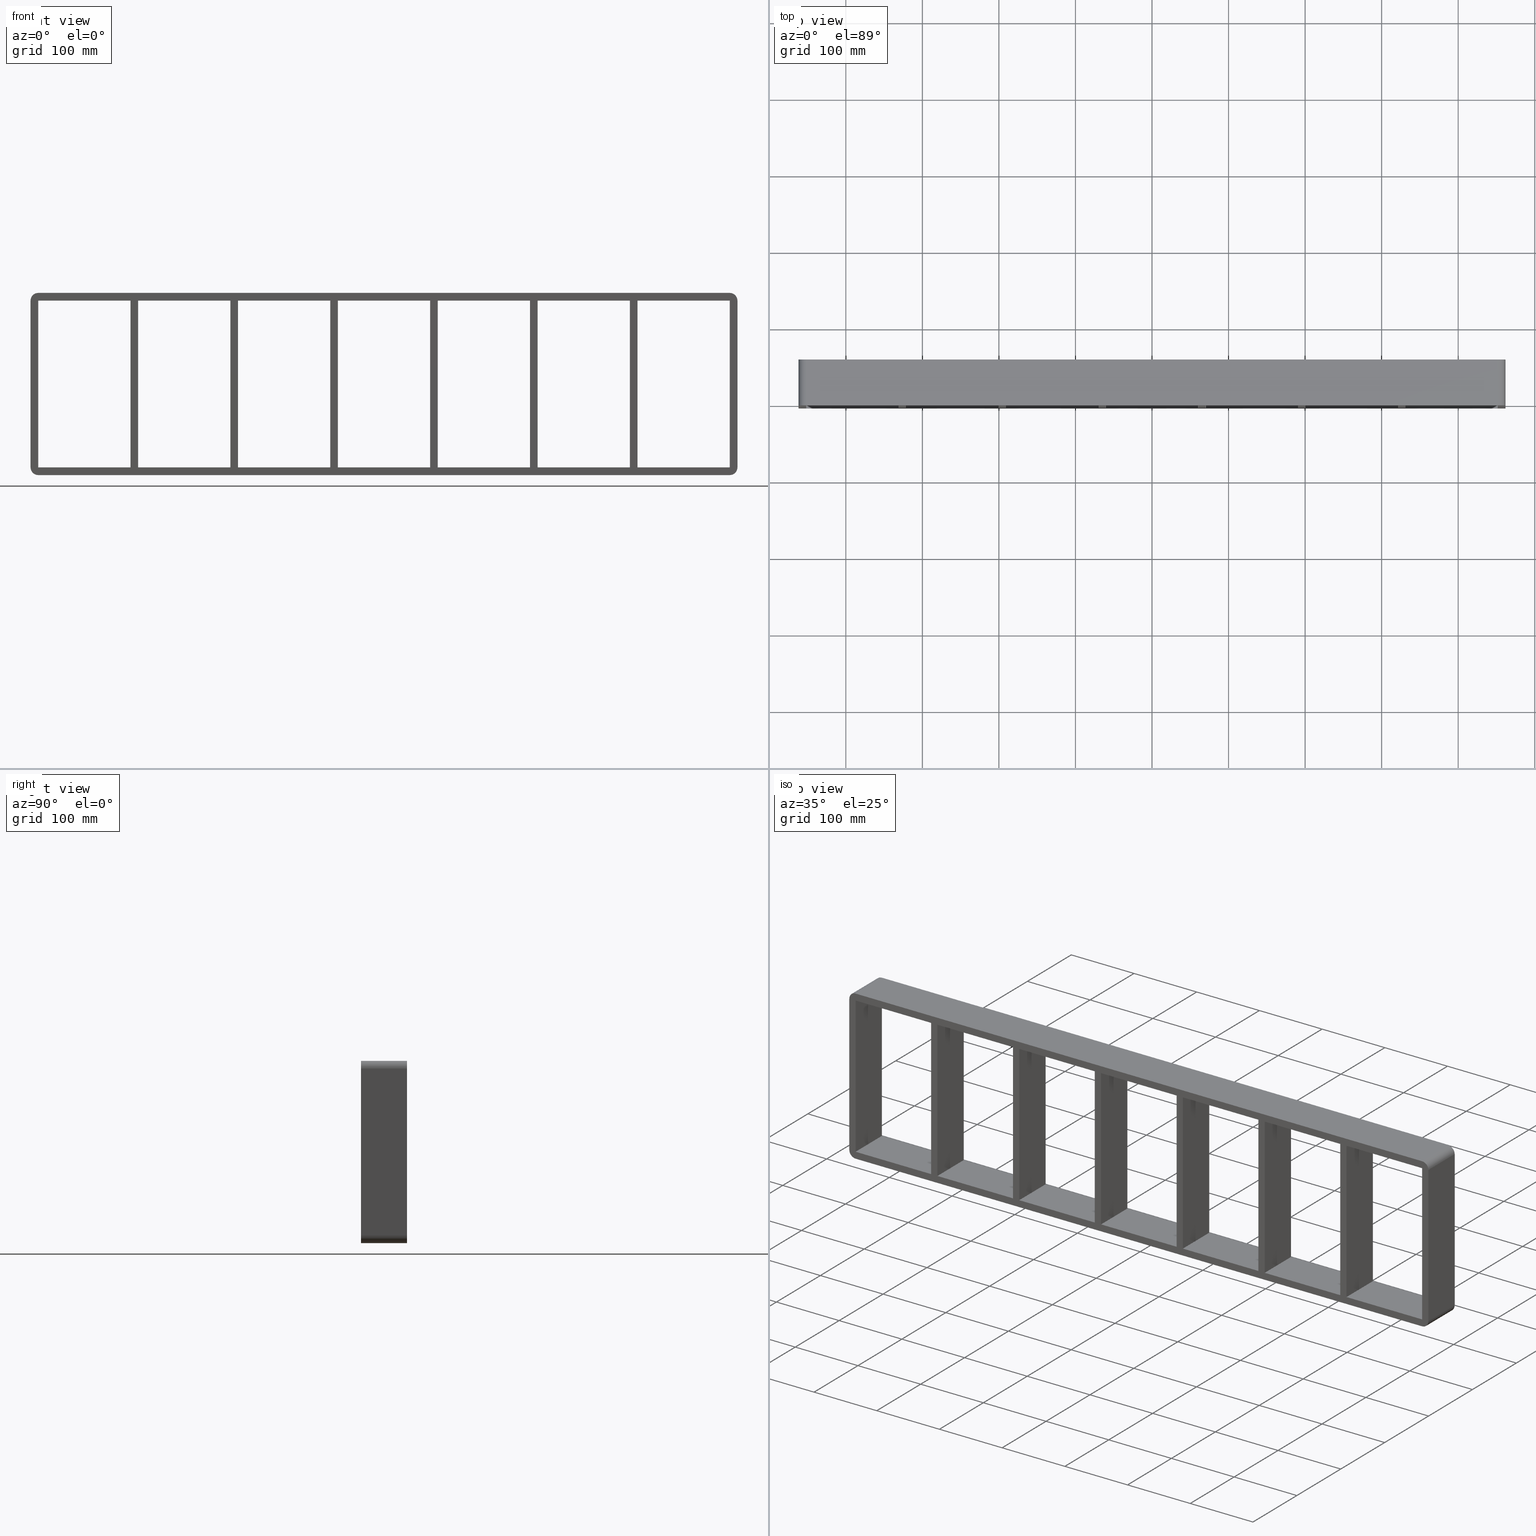
[diagram: canonical four-view strip — front | top / right | iso, engineering-drawing reading convention]
A machine part, canonical four-view strip (front | top / right | iso — engineering-drawing reading convention). The complete STEP part file that produces these views, byte-faithful:
ISO-10303-21;
HEADER;
/****************************************************************
 * Generated by software with PDElib inside                    *
 * PDElib Version v51a, created Wed 11/30/2011                  *
 * ITI Transcendata (http://www.transcendata.com/)              *
 ****************************************************************/
FILE_DESCRIPTION((''),'2;1');
FILE_NAME('C:\\RoxtecConfigurator\\CreatedFiles\\STEP\\S6X7.stp','2013-06-28T14:03:20',(''),(''),'Autodesk Inventor 2013','Autodesk Inventor 2013','');
FILE_SCHEMA(('AUTOMOTIVE_DESIGN { 1 0 10303 214 1 1 1 1 }'));
ENDSEC;
DATA;
#5=APPLICATION_CONTEXT('automotive design');
#6=APPLICATION_PROTOCOL_DEFINITION('International Standard','automotive_design',2001,#5);
#7=PRODUCT_CONTEXT('',#5,'mechanical');
#8=PRODUCT('roxtec S_SF_G','roxtec S_SF_G',$,(#7));
#9=PRODUCT_RELATED_PRODUCT_CATEGORY('part',$,(#8));
#10=PRODUCT_DEFINITION_FORMATION('',$,#8);
#11=PRODUCT_DEFINITION_CONTEXT('part definition',#5,'design');
#12=PRODUCT_DEFINITION('',$,#10,#11);
#18=(NAMED_UNIT(*)PLANE_ANGLE_UNIT()SI_UNIT($,.RADIAN.));
#19=DIMENSIONAL_EXPONENTS(0.0,0.0,0.0,0.0,0.0,0.0,0.0);
#20=PLANE_ANGLE_MEASURE_WITH_UNIT(PLANE_ANGLE_MEASURE(0.0174532925),#18);
#24=(CONVERSION_BASED_UNIT('DEGREE',#20)NAMED_UNIT(#19)PLANE_ANGLE_UNIT());
#28=(NAMED_UNIT(*)SI_UNIT($,.STERADIAN.)SOLID_ANGLE_UNIT());
#32=(LENGTH_UNIT()NAMED_UNIT(*)SI_UNIT(.MILLI.,.METRE.));
#34=UNCERTAINTY_MEASURE_WITH_UNIT(LENGTH_MEASURE(0.01),#32,'DISTANCE_ACCURACY_VALUE','');
#36=(GEOMETRIC_REPRESENTATION_CONTEXT(3)GLOBAL_UNCERTAINTY_ASSIGNED_CONTEXT((#34))GLOBAL_UNIT_ASSIGNED_CONTEXT((#24,#28,#32))REPRESENTATION_CONTEXT('None','None'));
#37=AXIS2_PLACEMENT_3D('',#38,#39,#40);
#38=CARTESIAN_POINT('',(0.0,0.0,0.0));
#39=DIRECTION('',(0.0,0.0,1.0));
#40=DIRECTION('',(1.0,0.0,0.0));
#41=SHAPE_REPRESENTATION('',(#37),#36);
#42=PRODUCT_DEFINITION_SHAPE('','',#12);
#43=SHAPE_DEFINITION_REPRESENTATION(#42,#41);
#49=(NAMED_UNIT(*)PLANE_ANGLE_UNIT()SI_UNIT($,.RADIAN.));
#50=DIMENSIONAL_EXPONENTS(0.0,0.0,0.0,0.0,0.0,0.0,0.0);
#51=PLANE_ANGLE_MEASURE_WITH_UNIT(PLANE_ANGLE_MEASURE(0.0174532925),#49);
#55=(CONVERSION_BASED_UNIT('DEGREE',#51)NAMED_UNIT(#50)PLANE_ANGLE_UNIT());
#59=(NAMED_UNIT(*)SI_UNIT($,.STERADIAN.)SOLID_ANGLE_UNIT());
#63=(LENGTH_UNIT()NAMED_UNIT(*)SI_UNIT(.MILLI.,.METRE.));
#65=UNCERTAINTY_MEASURE_WITH_UNIT(LENGTH_MEASURE(0.000001),#63,'DISTANCE_ACCURACY_VALUE','');
#67=(GEOMETRIC_REPRESENTATION_CONTEXT(3)GLOBAL_UNCERTAINTY_ASSIGNED_CONTEXT((#65))GLOBAL_UNIT_ASSIGNED_CONTEXT((#55,#59,#63))REPRESENTATION_CONTEXT('','3D'));
#68=CARTESIAN_POINT('',(321.24999999999875,-3.0,-109.0));
#69=DIRECTION('',(-1.0,0.0,0.0));
#70=DIRECTION('',(0.0,0.0,1.0));
#71=AXIS2_PLACEMENT_3D('',#68,#69,#70);
#72=PLANE('',#71);
#73=CARTESIAN_POINT('',(321.24999999999875,-3.0,-109.0));
#74=VERTEX_POINT('',#73);
#75=CARTESIAN_POINT('',(321.24999999999875,-3.0,108.99999999999997));
#76=VERTEX_POINT('',#75);
#77=CARTESIAN_POINT('',(321.24999999999875,-3.0,-109.0));
#78=DIRECTION('',(0.0,0.0,1.0));
#79=VECTOR('',#78,217.99999999999997);
#80=LINE('',#77,#79);
#81=EDGE_CURVE('',#74,#76,#80,.T.);
#82=ORIENTED_EDGE('',*,*,#81,.T.);
#83=CARTESIAN_POINT('',(321.24999999999875,57.0,108.99999999999997));
#84=VERTEX_POINT('',#83);
#85=CARTESIAN_POINT('',(321.24999999999875,57.000000000000007,108.99999999999999));
#86=DIRECTION('',(0.0,-1.0,0.0));
#87=VECTOR('',#86,60.000000000000007);
#88=LINE('',#85,#87);
#89=EDGE_CURVE('',#84,#76,#88,.T.);
#90=ORIENTED_EDGE('',*,*,#89,.F.);
#91=CARTESIAN_POINT('',(321.24999999999875,57.0,-109.0));
#92=VERTEX_POINT('',#91);
#93=CARTESIAN_POINT('',(321.24999999999875,57.0,-109.0));
#94=DIRECTION('',(0.0,0.0,1.0));
#95=VECTOR('',#94,217.99999999999997);
#96=LINE('',#93,#95);
#97=EDGE_CURVE('',#92,#84,#96,.T.);
#98=ORIENTED_EDGE('',*,*,#97,.F.);
#99=CARTESIAN_POINT('',(321.24999999999875,-3.0,-109.0));
#100=DIRECTION('',(0.0,1.0,0.0));
#101=VECTOR('',#100,60.000000000000007);
#102=LINE('',#99,#101);
#103=EDGE_CURVE('',#74,#92,#102,.T.);
#104=ORIENTED_EDGE('',*,*,#103,.F.);
#105=EDGE_LOOP('',(#82,#90,#98,#104));
#106=FACE_OUTER_BOUND('',#105,.T.);
#107=ADVANCED_FACE('',(#106),#72,.T.);
#108=CARTESIAN_POINT('',(331.25,-3.0,108.99999999999997));
#109=DIRECTION('',(1.0,0.0,0.0));
#110=DIRECTION('',(0.0,0.0,-1.0));
#111=AXIS2_PLACEMENT_3D('',#108,#109,#110);
#112=PLANE('',#111);
#113=CARTESIAN_POINT('',(331.25,-3.0,108.99999999999997));
#114=VERTEX_POINT('',#113);
#115=CARTESIAN_POINT('',(331.25,-3.0,-108.9999999999842));
#116=VERTEX_POINT('',#115);
#117=CARTESIAN_POINT('',(331.25,-3.0,108.99999999999997));
#118=DIRECTION('',(0.0,0.0,-1.0));
#119=VECTOR('',#118,217.99999999998417);
#120=LINE('',#117,#119);
#121=EDGE_CURVE('',#114,#116,#120,.T.);
#122=ORIENTED_EDGE('',*,*,#121,.T.);
#123=CARTESIAN_POINT('',(331.25,57.0,-108.9999999999842));
#124=VERTEX_POINT('',#123);
#125=CARTESIAN_POINT('',(331.25,57.000000000000007,-109.0));
#126=DIRECTION('',(0.0,-1.0,0.0));
#127=VECTOR('',#126,60.000000000000007);
#128=LINE('',#125,#127);
#129=EDGE_CURVE('',#124,#116,#128,.T.);
#130=ORIENTED_EDGE('',*,*,#129,.F.);
#131=CARTESIAN_POINT('',(331.25,57.0,108.99999999999997));
#132=VERTEX_POINT('',#131);
#133=CARTESIAN_POINT('',(331.25,57.0,108.99999999999997));
#134=DIRECTION('',(0.0,0.0,-1.0));
#135=VECTOR('',#134,217.99999999998417);
#136=LINE('',#133,#135);
#137=EDGE_CURVE('',#132,#124,#136,.T.);
#138=ORIENTED_EDGE('',*,*,#137,.F.);
#139=CARTESIAN_POINT('',(331.25,-3.0,108.99999999999999));
#140=DIRECTION('',(0.0,1.0,0.0));
#141=VECTOR('',#140,60.000000000000007);
#142=LINE('',#139,#141);
#143=EDGE_CURVE('',#114,#132,#142,.T.);
#144=ORIENTED_EDGE('',*,*,#143,.F.);
#145=EDGE_LOOP('',(#122,#130,#138,#144));
#146=FACE_OUTER_BOUND('',#145,.T.);
#147=ADVANCED_FACE('',(#146),#112,.T.);
#148=CARTESIAN_POINT('',(190.74999999999878,-3.0,-109.0));
#149=DIRECTION('',(-1.0,0.0,0.0));
#150=DIRECTION('',(0.0,0.0,1.0));
#151=AXIS2_PLACEMENT_3D('',#148,#149,#150);
#152=PLANE('',#151);
#153=CARTESIAN_POINT('',(190.74999999999878,-3.0,-109.0));
#154=VERTEX_POINT('',#153);
#155=CARTESIAN_POINT('',(190.74999999999872,-3.0,108.99999999999997));
#156=VERTEX_POINT('',#155);
#157=CARTESIAN_POINT('',(190.74999999999878,-3.0,-109.0));
#158=DIRECTION('',(0.0,0.0,1.0));
#159=VECTOR('',#158,217.99999999999997);
#160=LINE('',#157,#159);
#161=EDGE_CURVE('',#154,#156,#160,.T.);
#162=ORIENTED_EDGE('',*,*,#161,.T.);
#163=CARTESIAN_POINT('',(190.74999999999872,57.0,108.99999999999997));
#164=VERTEX_POINT('',#163);
#165=CARTESIAN_POINT('',(190.74999999999864,57.000000000000007,108.99999999999999));
#166=DIRECTION('',(0.0,-1.0,0.0));
#167=VECTOR('',#166,60.000000000000007);
#168=LINE('',#165,#167);
#169=EDGE_CURVE('',#164,#156,#168,.T.);
#170=ORIENTED_EDGE('',*,*,#169,.F.);
#171=CARTESIAN_POINT('',(190.74999999999878,57.0,-109.0));
#172=VERTEX_POINT('',#171);
#173=CARTESIAN_POINT('',(190.74999999999878,57.0,-109.0));
#174=DIRECTION('',(0.0,0.0,1.0));
#175=VECTOR('',#174,217.99999999999997);
#176=LINE('',#173,#175);
#177=EDGE_CURVE('',#172,#164,#176,.T.);
#178=ORIENTED_EDGE('',*,*,#177,.F.);
#179=CARTESIAN_POINT('',(190.74999999999875,-3.0,-109.0));
#180=DIRECTION('',(0.0,1.0,0.0));
#181=VECTOR('',#180,60.000000000000007);
#182=LINE('',#179,#181);
#183=EDGE_CURVE('',#154,#172,#182,.T.);
#184=ORIENTED_EDGE('',*,*,#183,.F.);
#185=EDGE_LOOP('',(#162,#170,#178,#184));
#186=FACE_OUTER_BOUND('',#185,.T.);
#187=ADVANCED_FACE('',(#186),#152,.T.);
#188=CARTESIAN_POINT('',(200.75000000000006,-3.0,108.99999999999997));
#189=DIRECTION('',(1.0,0.0,0.0));
#190=DIRECTION('',(0.0,0.0,-1.0));
#191=AXIS2_PLACEMENT_3D('',#188,#189,#190);
#192=PLANE('',#191);
#193=CARTESIAN_POINT('',(200.75000000000006,-3.0,108.99999999999997));
#194=VERTEX_POINT('',#193);
#195=CARTESIAN_POINT('',(200.75000000000006,-3.0,-108.9999999999842));
#196=VERTEX_POINT('',#195);
#197=CARTESIAN_POINT('',(200.75000000000006,-3.0,108.99999999999997));
#198=DIRECTION('',(0.0,0.0,-1.0));
#199=VECTOR('',#198,217.99999999998417);
#200=LINE('',#197,#199);
#201=EDGE_CURVE('',#194,#196,#200,.T.);
#202=ORIENTED_EDGE('',*,*,#201,.T.);
#203=CARTESIAN_POINT('',(200.75000000000006,57.0,-108.9999999999842));
#204=VERTEX_POINT('',#203);
#205=CARTESIAN_POINT('',(200.75000000000003,57.000000000000007,-109.0));
#206=DIRECTION('',(0.0,-1.0,0.0));
#207=VECTOR('',#206,60.000000000000007);
#208=LINE('',#205,#207);
#209=EDGE_CURVE('',#204,#196,#208,.T.);
#210=ORIENTED_EDGE('',*,*,#209,.F.);
#211=CARTESIAN_POINT('',(200.75000000000006,57.0,108.99999999999997));
#212=VERTEX_POINT('',#211);
#213=CARTESIAN_POINT('',(200.75000000000006,57.0,108.99999999999997));
#214=DIRECTION('',(0.0,0.0,-1.0));
#215=VECTOR('',#214,217.99999999998417);
#216=LINE('',#213,#215);
#217=EDGE_CURVE('',#212,#204,#216,.T.);
#218=ORIENTED_EDGE('',*,*,#217,.F.);
#219=CARTESIAN_POINT('',(200.75000000000003,-3.0,108.99999999999999));
#220=DIRECTION('',(0.0,1.0,0.0));
#221=VECTOR('',#220,60.000000000000007);
#222=LINE('',#219,#221);
#223=EDGE_CURVE('',#194,#212,#222,.T.);
#224=ORIENTED_EDGE('',*,*,#223,.F.);
#225=EDGE_LOOP('',(#202,#210,#218,#224));
#226=FACE_OUTER_BOUND('',#225,.T.);
#227=ADVANCED_FACE('',(#226),#192,.T.);
#228=CARTESIAN_POINT('',(60.249999999998778,-3.0,-109.0));
#229=DIRECTION('',(-1.0,0.0,0.0));
#230=DIRECTION('',(0.0,0.0,1.0));
#231=AXIS2_PLACEMENT_3D('',#228,#229,#230);
#232=PLANE('',#231);
#233=CARTESIAN_POINT('',(60.249999999998778,-3.0,-109.0));
#234=VERTEX_POINT('',#233);
#235=CARTESIAN_POINT('',(60.249999999998707,-3.0,108.99999999999997));
#236=VERTEX_POINT('',#235);
#237=CARTESIAN_POINT('',(60.249999999998778,-3.0,-109.0));
#238=DIRECTION('',(0.0,0.0,1.0));
#239=VECTOR('',#238,217.99999999999997);
#240=LINE('',#237,#239);
#241=EDGE_CURVE('',#234,#236,#240,.T.);
#242=ORIENTED_EDGE('',*,*,#241,.T.);
#243=CARTESIAN_POINT('',(60.249999999998707,57.0,108.99999999999997));
#244=VERTEX_POINT('',#243);
#245=CARTESIAN_POINT('',(60.249999999998707,57.000000000000007,108.99999999999999));
#246=DIRECTION('',(0.0,-1.0,0.0));
#247=VECTOR('',#246,60.000000000000007);
#248=LINE('',#245,#247);
#249=EDGE_CURVE('',#244,#236,#248,.T.);
#250=ORIENTED_EDGE('',*,*,#249,.F.);
#251=CARTESIAN_POINT('',(60.249999999998778,57.0,-109.0));
#252=VERTEX_POINT('',#251);
#253=CARTESIAN_POINT('',(60.249999999998778,57.0,-109.0));
#254=DIRECTION('',(0.0,0.0,1.0));
#255=VECTOR('',#254,217.99999999999997);
#256=LINE('',#253,#255);
#257=EDGE_CURVE('',#252,#244,#256,.T.);
#258=ORIENTED_EDGE('',*,*,#257,.F.);
#259=CARTESIAN_POINT('',(60.249999999998778,-3.0,-109.0));
#260=DIRECTION('',(0.0,1.0,0.0));
#261=VECTOR('',#260,60.000000000000007);
#262=LINE('',#259,#261);
#263=EDGE_CURVE('',#234,#252,#262,.T.);
#264=ORIENTED_EDGE('',*,*,#263,.F.);
#265=EDGE_LOOP('',(#242,#250,#258,#264));
#266=FACE_OUTER_BOUND('',#265,.T.);
#267=ADVANCED_FACE('',(#266),#232,.T.);
#268=CARTESIAN_POINT('',(70.250000000000057,-3.0,108.99999999999997));
#269=DIRECTION('',(1.0,0.0,0.0));
#270=DIRECTION('',(0.0,0.0,-1.0));
#271=AXIS2_PLACEMENT_3D('',#268,#269,#270);
#272=PLANE('',#271);
#273=CARTESIAN_POINT('',(70.250000000000057,-3.0,108.99999999999997));
#274=VERTEX_POINT('',#273);
#275=CARTESIAN_POINT('',(70.250000000000057,-3.0,-108.9999999999842));
#276=VERTEX_POINT('',#275);
#277=CARTESIAN_POINT('',(70.250000000000057,-3.0,108.99999999999997));
#278=DIRECTION('',(0.0,0.0,-1.0));
#279=VECTOR('',#278,217.99999999998417);
#280=LINE('',#277,#279);
#281=EDGE_CURVE('',#274,#276,#280,.T.);
#282=ORIENTED_EDGE('',*,*,#281,.T.);
#283=CARTESIAN_POINT('',(70.250000000000057,57.0,-108.9999999999842));
#284=VERTEX_POINT('',#283);
#285=CARTESIAN_POINT('',(70.250000000000057,57.000000000000007,-109.0));
#286=DIRECTION('',(0.0,-1.0,0.0));
#287=VECTOR('',#286,60.000000000000007);
#288=LINE('',#285,#287);
#289=EDGE_CURVE('',#284,#276,#288,.T.);
#290=ORIENTED_EDGE('',*,*,#289,.F.);
#291=CARTESIAN_POINT('',(70.250000000000057,57.0,108.99999999999997));
#292=VERTEX_POINT('',#291);
#293=CARTESIAN_POINT('',(70.250000000000057,57.0,108.99999999999997));
#294=DIRECTION('',(0.0,0.0,-1.0));
#295=VECTOR('',#294,217.99999999998417);
#296=LINE('',#293,#295);
#297=EDGE_CURVE('',#292,#284,#296,.T.);
#298=ORIENTED_EDGE('',*,*,#297,.F.);
#299=CARTESIAN_POINT('',(70.250000000000057,-3.0,108.99999999999999));
#300=DIRECTION('',(0.0,1.0,0.0));
#301=VECTOR('',#300,60.000000000000007);
#302=LINE('',#299,#301);
#303=EDGE_CURVE('',#274,#292,#302,.T.);
#304=ORIENTED_EDGE('',*,*,#303,.F.);
#305=EDGE_LOOP('',(#282,#290,#298,#304));
#306=FACE_OUTER_BOUND('',#305,.T.);
#307=ADVANCED_FACE('',(#306),#272,.T.);
#308=CARTESIAN_POINT('',(-70.250000000001265,-3.0,-109.0));
#309=DIRECTION('',(-1.0,0.0,0.0));
#310=DIRECTION('',(0.0,0.0,1.0));
#311=AXIS2_PLACEMENT_3D('',#308,#309,#310);
#312=PLANE('',#311);
#313=CARTESIAN_POINT('',(-70.250000000001265,-3.0,-109.0));
#314=VERTEX_POINT('',#313);
#315=CARTESIAN_POINT('',(-70.250000000001336,-3.0,108.99999999999997));
#316=VERTEX_POINT('',#315);
#317=CARTESIAN_POINT('',(-70.250000000001265,-3.0,-109.0));
#318=DIRECTION('',(0.0,0.0,1.0));
#319=VECTOR('',#318,217.99999999999997);
#320=LINE('',#317,#319);
#321=EDGE_CURVE('',#314,#316,#320,.T.);
#322=ORIENTED_EDGE('',*,*,#321,.T.);
#323=CARTESIAN_POINT('',(-70.250000000001336,57.0,108.99999999999997));
#324=VERTEX_POINT('',#323);
#325=CARTESIAN_POINT('',(-70.250000000001336,57.000000000000007,108.99999999999999));
#326=DIRECTION('',(0.0,-1.0,0.0));
#327=VECTOR('',#326,60.000000000000007);
#328=LINE('',#325,#327);
#329=EDGE_CURVE('',#324,#316,#328,.T.);
#330=ORIENTED_EDGE('',*,*,#329,.F.);
#331=CARTESIAN_POINT('',(-70.250000000001265,57.0,-109.0));
#332=VERTEX_POINT('',#331);
#333=CARTESIAN_POINT('',(-70.250000000001265,57.0,-109.0));
#334=DIRECTION('',(0.0,0.0,1.0));
#335=VECTOR('',#334,217.99999999999997);
#336=LINE('',#333,#335);
#337=EDGE_CURVE('',#332,#324,#336,.T.);
#338=ORIENTED_EDGE('',*,*,#337,.F.);
#339=CARTESIAN_POINT('',(-70.250000000001265,-3.0,-109.0));
#340=DIRECTION('',(0.0,1.0,0.0));
#341=VECTOR('',#340,60.000000000000007);
#342=LINE('',#339,#341);
#343=EDGE_CURVE('',#314,#332,#342,.T.);
#344=ORIENTED_EDGE('',*,*,#343,.F.);
#345=EDGE_LOOP('',(#322,#330,#338,#344));
#346=FACE_OUTER_BOUND('',#345,.T.);
#347=ADVANCED_FACE('',(#346),#312,.T.);
#348=CARTESIAN_POINT('',(-60.249999999999986,-3.0,108.99999999999997));
#349=DIRECTION('',(1.0,0.0,0.0));
#350=DIRECTION('',(0.0,0.0,-1.0));
#351=AXIS2_PLACEMENT_3D('',#348,#349,#350);
#352=PLANE('',#351);
#353=CARTESIAN_POINT('',(-60.249999999999986,-3.0,108.99999999999997));
#354=VERTEX_POINT('',#353);
#355=CARTESIAN_POINT('',(-60.249999999999986,-3.0,-108.9999999999842));
#356=VERTEX_POINT('',#355);
#357=CARTESIAN_POINT('',(-60.249999999999986,-3.0,108.99999999999997));
#358=DIRECTION('',(0.0,0.0,-1.0));
#359=VECTOR('',#358,217.99999999998417);
#360=LINE('',#357,#359);
#361=EDGE_CURVE('',#354,#356,#360,.T.);
#362=ORIENTED_EDGE('',*,*,#361,.T.);
#363=CARTESIAN_POINT('',(-60.249999999999986,57.0,-108.9999999999842));
#364=VERTEX_POINT('',#363);
#365=CARTESIAN_POINT('',(-60.249999999999986,57.000000000000007,-109.0));
#366=DIRECTION('',(0.0,-1.0,0.0));
#367=VECTOR('',#366,60.000000000000007);
#368=LINE('',#365,#367);
#369=EDGE_CURVE('',#364,#356,#368,.T.);
#370=ORIENTED_EDGE('',*,*,#369,.F.);
#371=CARTESIAN_POINT('',(-60.249999999999986,57.0,108.99999999999997));
#372=VERTEX_POINT('',#371);
#373=CARTESIAN_POINT('',(-60.249999999999986,57.0,108.99999999999997));
#374=DIRECTION('',(0.0,0.0,-1.0));
#375=VECTOR('',#374,217.99999999998417);
#376=LINE('',#373,#375);
#377=EDGE_CURVE('',#372,#364,#376,.T.);
#378=ORIENTED_EDGE('',*,*,#377,.F.);
#379=CARTESIAN_POINT('',(-60.249999999999986,-3.0,108.99999999999999));
#380=DIRECTION('',(0.0,1.0,0.0));
#381=VECTOR('',#380,60.000000000000007);
#382=LINE('',#379,#381);
#383=EDGE_CURVE('',#354,#372,#382,.T.);
#384=ORIENTED_EDGE('',*,*,#383,.F.);
#385=EDGE_LOOP('',(#362,#370,#378,#384));
#386=FACE_OUTER_BOUND('',#385,.T.);
#387=ADVANCED_FACE('',(#386),#352,.T.);
#388=CARTESIAN_POINT('',(-200.75000000000128,-3.0,-109.0));
#389=DIRECTION('',(-1.0,0.0,0.0));
#390=DIRECTION('',(0.0,0.0,1.0));
#391=AXIS2_PLACEMENT_3D('',#388,#389,#390);
#392=PLANE('',#391);
#393=CARTESIAN_POINT('',(-200.75000000000128,-3.0,-109.0));
#394=VERTEX_POINT('',#393);
#395=CARTESIAN_POINT('',(-200.75000000000134,-3.0,108.99999999999997));
#396=VERTEX_POINT('',#395);
#397=CARTESIAN_POINT('',(-200.75000000000128,-3.0,-109.0));
#398=DIRECTION('',(0.0,0.0,1.0));
#399=VECTOR('',#398,217.99999999999997);
#400=LINE('',#397,#399);
#401=EDGE_CURVE('',#394,#396,#400,.T.);
#402=ORIENTED_EDGE('',*,*,#401,.T.);
#403=CARTESIAN_POINT('',(-200.75000000000134,57.0,108.99999999999997));
#404=VERTEX_POINT('',#403);
#405=CARTESIAN_POINT('',(-200.75000000000134,57.000000000000007,108.99999999999999));
#406=DIRECTION('',(0.0,-1.0,0.0));
#407=VECTOR('',#406,60.000000000000007);
#408=LINE('',#405,#407);
#409=EDGE_CURVE('',#404,#396,#408,.T.);
#410=ORIENTED_EDGE('',*,*,#409,.F.);
#411=CARTESIAN_POINT('',(-200.75000000000128,57.0,-109.0));
#412=VERTEX_POINT('',#411);
#413=CARTESIAN_POINT('',(-200.75000000000128,57.0,-109.0));
#414=DIRECTION('',(0.0,0.0,1.0));
#415=VECTOR('',#414,217.99999999999997);
#416=LINE('',#413,#415);
#417=EDGE_CURVE('',#412,#404,#416,.T.);
#418=ORIENTED_EDGE('',*,*,#417,.F.);
#419=CARTESIAN_POINT('',(-200.75000000000131,-3.0,-109.0));
#420=DIRECTION('',(0.0,1.0,0.0));
#421=VECTOR('',#420,60.000000000000007);
#422=LINE('',#419,#421);
#423=EDGE_CURVE('',#394,#412,#422,.T.);
#424=ORIENTED_EDGE('',*,*,#423,.F.);
#425=EDGE_LOOP('',(#402,#410,#418,#424));
#426=FACE_OUTER_BOUND('',#425,.T.);
#427=ADVANCED_FACE('',(#426),#392,.T.);
#428=CARTESIAN_POINT('',(-190.75,-3.0,108.99999999999997));
#429=DIRECTION('',(1.0,0.0,0.0));
#430=DIRECTION('',(0.0,0.0,-1.0));
#431=AXIS2_PLACEMENT_3D('',#428,#429,#430);
#432=PLANE('',#431);
#433=CARTESIAN_POINT('',(-190.75,-3.0,108.99999999999997));
#434=VERTEX_POINT('',#433);
#435=CARTESIAN_POINT('',(-190.75,-3.0,-108.9999999999842));
#436=VERTEX_POINT('',#435);
#437=CARTESIAN_POINT('',(-190.75,-3.0,108.99999999999997));
#438=DIRECTION('',(0.0,0.0,-1.0));
#439=VECTOR('',#438,217.99999999998417);
#440=LINE('',#437,#439);
#441=EDGE_CURVE('',#434,#436,#440,.T.);
#442=ORIENTED_EDGE('',*,*,#441,.T.);
#443=CARTESIAN_POINT('',(-190.75,57.0,-108.9999999999842));
#444=VERTEX_POINT('',#443);
#445=CARTESIAN_POINT('',(-190.75000000000003,57.000000000000007,-109.0));
#446=DIRECTION('',(0.0,-1.0,0.0));
#447=VECTOR('',#446,60.000000000000007);
#448=LINE('',#445,#447);
#449=EDGE_CURVE('',#444,#436,#448,.T.);
#450=ORIENTED_EDGE('',*,*,#449,.F.);
#451=CARTESIAN_POINT('',(-190.75,57.0,108.99999999999997));
#452=VERTEX_POINT('',#451);
#453=CARTESIAN_POINT('',(-190.75,57.0,108.99999999999997));
#454=DIRECTION('',(0.0,0.0,-1.0));
#455=VECTOR('',#454,217.99999999998417);
#456=LINE('',#453,#455);
#457=EDGE_CURVE('',#452,#444,#456,.T.);
#458=ORIENTED_EDGE('',*,*,#457,.F.);
#459=CARTESIAN_POINT('',(-190.75000000000003,-3.0,108.99999999999999));
#460=DIRECTION('',(0.0,1.0,0.0));
#461=VECTOR('',#460,60.000000000000007);
#462=LINE('',#459,#461);
#463=EDGE_CURVE('',#434,#452,#462,.T.);
#464=ORIENTED_EDGE('',*,*,#463,.F.);
#465=EDGE_LOOP('',(#442,#450,#458,#464));
#466=FACE_OUTER_BOUND('',#465,.T.);
#467=ADVANCED_FACE('',(#466),#432,.T.);
#468=CARTESIAN_POINT('',(451.75,0.0,-109.0));
#469=DIRECTION('',(0.0,0.0,-1.0));
#470=DIRECTION('',(-1.0,0.0,0.0));
#471=AXIS2_PLACEMENT_3D('',#468,#469,#470);
#472=PLANE('',#471);
#473=ORIENTED_EDGE('',*,*,#423,.T.);
#474=CARTESIAN_POINT('',(-321.25,57.0,-108.9999999999842));
#475=VERTEX_POINT('',#474);
#476=CARTESIAN_POINT('',(-321.25,57.0,-109.0));
#477=DIRECTION('',(1.0,0.0,0.0));
#478=VECTOR('',#477,120.49999999999872);
#479=LINE('',#476,#478);
#480=EDGE_CURVE('',#475,#412,#479,.T.);
#481=ORIENTED_EDGE('',*,*,#480,.F.);
#482=CARTESIAN_POINT('',(-321.25,-3.0,-108.9999999999842));
#483=VERTEX_POINT('',#482);
#484=CARTESIAN_POINT('',(-321.25,57.000000000000007,-109.0));
#485=DIRECTION('',(0.0,-1.0,0.0));
#486=VECTOR('',#485,60.000000000000007);
#487=LINE('',#484,#486);
#488=EDGE_CURVE('',#475,#483,#487,.T.);
#489=ORIENTED_EDGE('',*,*,#488,.T.);
#490=CARTESIAN_POINT('',(-200.75000000000128,-3.0,-109.0));
#491=DIRECTION('',(-1.0,0.0,0.0));
#492=VECTOR('',#491,120.49999999999872);
#493=LINE('',#490,#492);
#494=EDGE_CURVE('',#394,#483,#493,.T.);
#495=ORIENTED_EDGE('',*,*,#494,.F.);
#496=EDGE_LOOP('',(#473,#481,#489,#495));
#497=FACE_OUTER_BOUND('',#496,.T.);
#498=ADVANCED_FACE('',(#497),#472,.F.);
#499=CARTESIAN_POINT('',(451.75,0.0,-109.0));
#500=DIRECTION('',(0.0,0.0,-1.0));
#501=DIRECTION('',(-1.0,0.0,0.0));
#502=AXIS2_PLACEMENT_3D('',#499,#500,#501);
#503=PLANE('',#502);
#504=ORIENTED_EDGE('',*,*,#343,.T.);
#505=CARTESIAN_POINT('',(-190.74999999999997,57.0,-109.0));
#506=DIRECTION('',(1.0,0.0,0.0));
#507=VECTOR('',#506,120.49999999999869);
#508=LINE('',#505,#507);
#509=EDGE_CURVE('',#444,#332,#508,.T.);
#510=ORIENTED_EDGE('',*,*,#509,.F.);
#511=ORIENTED_EDGE('',*,*,#449,.T.);
#512=CARTESIAN_POINT('',(-70.250000000001279,-3.0,-109.0));
#513=DIRECTION('',(-1.0,0.0,0.0));
#514=VECTOR('',#513,120.49999999999869);
#515=LINE('',#512,#514);
#516=EDGE_CURVE('',#314,#436,#515,.T.);
#517=ORIENTED_EDGE('',*,*,#516,.F.);
#518=EDGE_LOOP('',(#504,#510,#511,#517));
#519=FACE_OUTER_BOUND('',#518,.T.);
#520=ADVANCED_FACE('',(#519),#503,.F.);
#521=CARTESIAN_POINT('',(451.75,0.0,-109.0));
#522=DIRECTION('',(0.0,0.0,-1.0));
#523=DIRECTION('',(-1.0,0.0,0.0));
#524=AXIS2_PLACEMENT_3D('',#521,#522,#523);
#525=PLANE('',#524);
#526=ORIENTED_EDGE('',*,*,#263,.T.);
#527=CARTESIAN_POINT('',(-60.249999999999972,57.0,-109.0));
#528=DIRECTION('',(1.0,0.0,0.0));
#529=VECTOR('',#528,120.49999999999875);
#530=LINE('',#527,#529);
#531=EDGE_CURVE('',#364,#252,#530,.T.);
#532=ORIENTED_EDGE('',*,*,#531,.F.);
#533=ORIENTED_EDGE('',*,*,#369,.T.);
#534=CARTESIAN_POINT('',(60.249999999998778,-3.0,-109.0));
#535=DIRECTION('',(-1.0,0.0,0.0));
#536=VECTOR('',#535,120.49999999999875);
#537=LINE('',#534,#536);
#538=EDGE_CURVE('',#234,#356,#537,.T.);
#539=ORIENTED_EDGE('',*,*,#538,.F.);
#540=EDGE_LOOP('',(#526,#532,#533,#539));
#541=FACE_OUTER_BOUND('',#540,.T.);
#542=ADVANCED_FACE('',(#541),#525,.F.);
#543=CARTESIAN_POINT('',(451.75,0.0,-109.0));
#544=DIRECTION('',(0.0,0.0,-1.0));
#545=DIRECTION('',(-1.0,0.0,0.0));
#546=AXIS2_PLACEMENT_3D('',#543,#544,#545);
#547=PLANE('',#546);
#548=ORIENTED_EDGE('',*,*,#183,.T.);
#549=CARTESIAN_POINT('',(70.250000000000057,57.0,-109.0));
#550=DIRECTION('',(1.0,0.0,0.0));
#551=VECTOR('',#550,120.49999999999875);
#552=LINE('',#549,#551);
#553=EDGE_CURVE('',#284,#172,#552,.T.);
#554=ORIENTED_EDGE('',*,*,#553,.F.);
#555=ORIENTED_EDGE('',*,*,#289,.T.);
#556=CARTESIAN_POINT('',(190.74999999999881,-3.0,-109.0));
#557=DIRECTION('',(-1.0,0.0,0.0));
#558=VECTOR('',#557,120.49999999999875);
#559=LINE('',#556,#558);
#560=EDGE_CURVE('',#154,#276,#559,.T.);
#561=ORIENTED_EDGE('',*,*,#560,.F.);
#562=EDGE_LOOP('',(#548,#554,#555,#561));
#563=FACE_OUTER_BOUND('',#562,.T.);
#564=ADVANCED_FACE('',(#563),#547,.F.);
#565=CARTESIAN_POINT('',(451.75,0.0,-109.0));
#566=DIRECTION('',(0.0,0.0,-1.0));
#567=DIRECTION('',(-1.0,0.0,0.0));
#568=AXIS2_PLACEMENT_3D('',#565,#566,#567);
#569=PLANE('',#568);
#570=ORIENTED_EDGE('',*,*,#103,.T.);
#571=CARTESIAN_POINT('',(200.75000000000006,57.0,-109.0));
#572=DIRECTION('',(1.0,0.0,0.0));
#573=VECTOR('',#572,120.49999999999869);
#574=LINE('',#571,#573);
#575=EDGE_CURVE('',#204,#92,#574,.T.);
#576=ORIENTED_EDGE('',*,*,#575,.F.);
#577=ORIENTED_EDGE('',*,*,#209,.T.);
#578=CARTESIAN_POINT('',(321.24999999999875,-3.0,-109.0));
#579=DIRECTION('',(-1.0,0.0,0.0));
#580=VECTOR('',#579,120.49999999999869);
#581=LINE('',#578,#580);
#582=EDGE_CURVE('',#74,#196,#581,.T.);
#583=ORIENTED_EDGE('',*,*,#582,.F.);
#584=EDGE_LOOP('',(#570,#576,#577,#583));
#585=FACE_OUTER_BOUND('',#584,.T.);
#586=ADVANCED_FACE('',(#585),#569,.F.);
#587=CARTESIAN_POINT('',(451.75,0.0,-109.0));
#588=DIRECTION('',(0.0,0.0,-1.0));
#589=DIRECTION('',(-1.0,0.0,0.0));
#590=AXIS2_PLACEMENT_3D('',#587,#588,#589);
#591=PLANE('',#590);
#592=ORIENTED_EDGE('',*,*,#129,.T.);
#593=CARTESIAN_POINT('',(451.75,-3.0,-109.0));
#594=VERTEX_POINT('',#593);
#595=CARTESIAN_POINT('',(451.75,-3.0,-109.0));
#596=DIRECTION('',(-1.0,0.0,0.0));
#597=VECTOR('',#596,120.5);
#598=LINE('',#595,#597);
#599=EDGE_CURVE('',#594,#116,#598,.T.);
#600=ORIENTED_EDGE('',*,*,#599,.F.);
#601=CARTESIAN_POINT('',(451.75,57.0,-109.0));
#602=VERTEX_POINT('',#601);
#603=CARTESIAN_POINT('',(451.75,57.0,-109.0));
#604=DIRECTION('',(0.0,-1.0,0.0));
#605=VECTOR('',#604,60.0);
#606=LINE('',#603,#605);
#607=EDGE_CURVE('',#602,#594,#606,.T.);
#608=ORIENTED_EDGE('',*,*,#607,.F.);
#609=CARTESIAN_POINT('',(331.25,57.0,-109.0));
#610=DIRECTION('',(1.0,0.0,0.0));
#611=VECTOR('',#610,120.5);
#612=LINE('',#609,#611);
#613=EDGE_CURVE('',#124,#602,#612,.T.);
#614=ORIENTED_EDGE('',*,*,#613,.F.);
#615=EDGE_LOOP('',(#592,#600,#608,#614));
#616=FACE_OUTER_BOUND('',#615,.T.);
#617=ADVANCED_FACE('',(#616),#591,.F.);
#618=CARTESIAN_POINT('',(-451.75,0.0,108.99999999999999));
#619=DIRECTION('',(0.0,0.0,1.0));
#620=DIRECTION('',(1.0,0.0,0.0));
#621=AXIS2_PLACEMENT_3D('',#618,#619,#620);
#622=PLANE('',#621);
#623=ORIENTED_EDGE('',*,*,#409,.T.);
#624=CARTESIAN_POINT('',(-321.25,-3.0,108.99999999999997));
#625=VERTEX_POINT('',#624);
#626=CARTESIAN_POINT('',(-321.25,-3.0,108.99999999999999));
#627=DIRECTION('',(1.0,0.0,0.0));
#628=VECTOR('',#627,120.49999999999866);
#629=LINE('',#626,#628);
#630=EDGE_CURVE('',#625,#396,#629,.T.);
#631=ORIENTED_EDGE('',*,*,#630,.F.);
#632=CARTESIAN_POINT('',(-321.25,57.0,108.99999999999997));
#633=VERTEX_POINT('',#632);
#634=CARTESIAN_POINT('',(-321.25,-3.0,108.99999999999999));
#635=DIRECTION('',(0.0,1.0,0.0));
#636=VECTOR('',#635,60.000000000000007);
#637=LINE('',#634,#636);
#638=EDGE_CURVE('',#625,#633,#637,.T.);
#639=ORIENTED_EDGE('',*,*,#638,.T.);
#640=CARTESIAN_POINT('',(-200.75000000000134,57.0,108.99999999999999));
#641=DIRECTION('',(-1.0,0.0,0.0));
#642=VECTOR('',#641,120.49999999999866);
#643=LINE('',#640,#642);
#644=EDGE_CURVE('',#404,#633,#643,.T.);
#645=ORIENTED_EDGE('',*,*,#644,.F.);
#646=EDGE_LOOP('',(#623,#631,#639,#645));
#647=FACE_OUTER_BOUND('',#646,.T.);
#648=ADVANCED_FACE('',(#647),#622,.F.);
#649=CARTESIAN_POINT('',(-451.75,0.0,108.99999999999999));
#650=DIRECTION('',(0.0,0.0,1.0));
#651=DIRECTION('',(1.0,0.0,0.0));
#652=AXIS2_PLACEMENT_3D('',#649,#650,#651);
#653=PLANE('',#652);
#654=ORIENTED_EDGE('',*,*,#329,.T.);
#655=CARTESIAN_POINT('',(-190.75,-3.0,108.99999999999999));
#656=DIRECTION('',(1.0,0.0,0.0));
#657=VECTOR('',#656,120.49999999999866);
#658=LINE('',#655,#657);
#659=EDGE_CURVE('',#434,#316,#658,.T.);
#660=ORIENTED_EDGE('',*,*,#659,.F.);
#661=ORIENTED_EDGE('',*,*,#463,.T.);
#662=CARTESIAN_POINT('',(-70.250000000001336,57.0,108.99999999999999));
#663=DIRECTION('',(-1.0,0.0,0.0));
#664=VECTOR('',#663,120.49999999999866);
#665=LINE('',#662,#664);
#666=EDGE_CURVE('',#324,#452,#665,.T.);
#667=ORIENTED_EDGE('',*,*,#666,.F.);
#668=EDGE_LOOP('',(#654,#660,#661,#667));
#669=FACE_OUTER_BOUND('',#668,.T.);
#670=ADVANCED_FACE('',(#669),#653,.F.);
#671=CARTESIAN_POINT('',(-451.75,0.0,108.99999999999999));
#672=DIRECTION('',(0.0,0.0,1.0));
#673=DIRECTION('',(1.0,0.0,0.0));
#674=AXIS2_PLACEMENT_3D('',#671,#672,#673);
#675=PLANE('',#674);
#676=ORIENTED_EDGE('',*,*,#249,.T.);
#677=CARTESIAN_POINT('',(-60.249999999999972,-3.0,108.99999999999999));
#678=DIRECTION('',(1.0,0.0,0.0));
#679=VECTOR('',#678,120.49999999999866);
#680=LINE('',#677,#679);
#681=EDGE_CURVE('',#354,#236,#680,.T.);
#682=ORIENTED_EDGE('',*,*,#681,.F.);
#683=ORIENTED_EDGE('',*,*,#383,.T.);
#684=CARTESIAN_POINT('',(60.249999999998693,57.0,108.99999999999999));
#685=DIRECTION('',(-1.0,0.0,0.0));
#686=VECTOR('',#685,120.49999999999866);
#687=LINE('',#684,#686);
#688=EDGE_CURVE('',#244,#372,#687,.T.);
#689=ORIENTED_EDGE('',*,*,#688,.F.);
#690=EDGE_LOOP('',(#676,#682,#683,#689));
#691=FACE_OUTER_BOUND('',#690,.T.);
#692=ADVANCED_FACE('',(#691),#675,.F.);
#693=CARTESIAN_POINT('',(-451.75,0.0,108.99999999999999));
#694=DIRECTION('',(0.0,0.0,1.0));
#695=DIRECTION('',(1.0,0.0,0.0));
#696=AXIS2_PLACEMENT_3D('',#693,#694,#695);
#697=PLANE('',#696);
#698=ORIENTED_EDGE('',*,*,#169,.T.);
#699=CARTESIAN_POINT('',(70.250000000000057,-3.0,108.99999999999999));
#700=DIRECTION('',(1.0,0.0,0.0));
#701=VECTOR('',#700,120.49999999999864);
#702=LINE('',#699,#701);
#703=EDGE_CURVE('',#274,#156,#702,.T.);
#704=ORIENTED_EDGE('',*,*,#703,.F.);
#705=ORIENTED_EDGE('',*,*,#303,.T.);
#706=CARTESIAN_POINT('',(190.74999999999869,57.0,108.99999999999999));
#707=DIRECTION('',(-1.0,0.0,0.0));
#708=VECTOR('',#707,120.49999999999864);
#709=LINE('',#706,#708);
#710=EDGE_CURVE('',#164,#292,#709,.T.);
#711=ORIENTED_EDGE('',*,*,#710,.F.);
#712=EDGE_LOOP('',(#698,#704,#705,#711));
#713=FACE_OUTER_BOUND('',#712,.T.);
#714=ADVANCED_FACE('',(#713),#697,.F.);
#715=CARTESIAN_POINT('',(-451.75,0.0,108.99999999999999));
#716=DIRECTION('',(0.0,0.0,1.0));
#717=DIRECTION('',(1.0,0.0,0.0));
#718=AXIS2_PLACEMENT_3D('',#715,#716,#717);
#719=PLANE('',#718);
#720=ORIENTED_EDGE('',*,*,#143,.T.);
#721=CARTESIAN_POINT('',(451.75,57.0,108.99999999999997));
#722=VERTEX_POINT('',#721);
#723=CARTESIAN_POINT('',(451.74999999999994,57.0,108.99999999999999));
#724=DIRECTION('',(-1.0,0.0,0.0));
#725=VECTOR('',#724,120.5);
#726=LINE('',#723,#725);
#727=EDGE_CURVE('',#722,#132,#726,.T.);
#728=ORIENTED_EDGE('',*,*,#727,.F.);
#729=CARTESIAN_POINT('',(451.75,-3.0,108.99999999999997));
#730=VERTEX_POINT('',#729);
#731=CARTESIAN_POINT('',(451.75,-3.0,108.99999999999999));
#732=DIRECTION('',(0.0,1.0,0.0));
#733=VECTOR('',#732,60.0);
#734=LINE('',#731,#733);
#735=EDGE_CURVE('',#730,#722,#734,.T.);
#736=ORIENTED_EDGE('',*,*,#735,.F.);
#737=CARTESIAN_POINT('',(331.24999999999994,-3.0,108.99999999999999));
#738=DIRECTION('',(1.0,0.0,0.0));
#739=VECTOR('',#738,120.5);
#740=LINE('',#737,#739);
#741=EDGE_CURVE('',#114,#730,#740,.T.);
#742=ORIENTED_EDGE('',*,*,#741,.F.);
#743=EDGE_LOOP('',(#720,#728,#736,#742));
#744=FACE_OUTER_BOUND('',#743,.T.);
#745=ADVANCED_FACE('',(#744),#719,.F.);
#746=CARTESIAN_POINT('',(-451.75,0.0,108.99999999999999));
#747=DIRECTION('',(0.0,0.0,1.0));
#748=DIRECTION('',(1.0,0.0,0.0));
#749=AXIS2_PLACEMENT_3D('',#746,#747,#748);
#750=PLANE('',#749);
#751=ORIENTED_EDGE('',*,*,#89,.T.);
#752=CARTESIAN_POINT('',(200.75000000000006,-3.0,108.99999999999999));
#753=DIRECTION('',(1.0,0.0,0.0));
#754=VECTOR('',#753,120.49999999999864);
#755=LINE('',#752,#754);
#756=EDGE_CURVE('',#194,#76,#755,.T.);
#757=ORIENTED_EDGE('',*,*,#756,.F.);
#758=ORIENTED_EDGE('',*,*,#223,.T.);
#759=CARTESIAN_POINT('',(321.24999999999869,57.0,108.99999999999999));
#760=DIRECTION('',(-1.0,0.0,0.0));
#761=VECTOR('',#760,120.49999999999864);
#762=LINE('',#759,#761);
#763=EDGE_CURVE('',#84,#212,#762,.T.);
#764=ORIENTED_EDGE('',*,*,#763,.F.);
#765=EDGE_LOOP('',(#751,#757,#758,#764));
#766=FACE_OUTER_BOUND('',#765,.T.);
#767=ADVANCED_FACE('',(#766),#750,.F.);
#768=CARTESIAN_POINT('',(-331.25000000000125,-3.0,-109.0));
#769=DIRECTION('',(-1.0,0.0,0.0));
#770=DIRECTION('',(0.0,0.0,1.0));
#771=AXIS2_PLACEMENT_3D('',#768,#769,#770);
#772=PLANE('',#771);
#773=CARTESIAN_POINT('',(-331.25000000000125,-3.0,-109.0));
#774=VERTEX_POINT('',#773);
#775=CARTESIAN_POINT('',(-331.25000000000136,-3.0,108.99999999999997));
#776=VERTEX_POINT('',#775);
#777=CARTESIAN_POINT('',(-331.25000000000125,-3.0,-109.0));
#778=DIRECTION('',(0.0,0.0,1.0));
#779=VECTOR('',#778,217.99999999999997);
#780=LINE('',#777,#779);
#781=EDGE_CURVE('',#774,#776,#780,.T.);
#782=ORIENTED_EDGE('',*,*,#781,.T.);
#783=CARTESIAN_POINT('',(-331.25000000000136,57.0,108.99999999999997));
#784=VERTEX_POINT('',#783);
#785=CARTESIAN_POINT('',(-331.25000000000125,57.000000000000007,108.99999999999999));
#786=DIRECTION('',(0.0,-1.0,0.0));
#787=VECTOR('',#786,60.000000000000007);
#788=LINE('',#785,#787);
#789=EDGE_CURVE('',#784,#776,#788,.T.);
#790=ORIENTED_EDGE('',*,*,#789,.F.);
#791=CARTESIAN_POINT('',(-331.25000000000125,57.0,-109.0));
#792=VERTEX_POINT('',#791);
#793=CARTESIAN_POINT('',(-331.25000000000125,57.0,-109.0));
#794=DIRECTION('',(0.0,0.0,1.0));
#795=VECTOR('',#794,217.99999999999997);
#796=LINE('',#793,#795);
#797=EDGE_CURVE('',#792,#784,#796,.T.);
#798=ORIENTED_EDGE('',*,*,#797,.F.);
#799=CARTESIAN_POINT('',(-331.25000000000125,-3.0,-109.0));
#800=DIRECTION('',(0.0,1.0,0.0));
#801=VECTOR('',#800,60.000000000000007);
#802=LINE('',#799,#801);
#803=EDGE_CURVE('',#774,#792,#802,.T.);
#804=ORIENTED_EDGE('',*,*,#803,.F.);
#805=EDGE_LOOP('',(#782,#790,#798,#804));
#806=FACE_OUTER_BOUND('',#805,.T.);
#807=ADVANCED_FACE('',(#806),#772,.T.);
#808=CARTESIAN_POINT('',(-321.25,-3.0,108.99999999999997));
#809=DIRECTION('',(1.0,0.0,0.0));
#810=DIRECTION('',(0.0,0.0,-1.0));
#811=AXIS2_PLACEMENT_3D('',#808,#809,#810);
#812=PLANE('',#811);
#813=CARTESIAN_POINT('',(-321.25,-3.0,108.99999999999997));
#814=DIRECTION('',(0.0,0.0,-1.0));
#815=VECTOR('',#814,217.99999999998417);
#816=LINE('',#813,#815);
#817=EDGE_CURVE('',#625,#483,#816,.T.);
#818=ORIENTED_EDGE('',*,*,#817,.T.);
#819=ORIENTED_EDGE('',*,*,#488,.F.);
#820=CARTESIAN_POINT('',(-321.25,57.0,108.99999999999997));
#821=DIRECTION('',(0.0,0.0,-1.0));
#822=VECTOR('',#821,217.99999999998417);
#823=LINE('',#820,#822);
#824=EDGE_CURVE('',#633,#475,#823,.T.);
#825=ORIENTED_EDGE('',*,*,#824,.F.);
#826=ORIENTED_EDGE('',*,*,#638,.F.);
#827=EDGE_LOOP('',(#818,#819,#825,#826));
#828=FACE_OUTER_BOUND('',#827,.T.);
#829=ADVANCED_FACE('',(#828),#812,.T.);
#830=CARTESIAN_POINT('',(451.75,0.0,-109.0));
#831=DIRECTION('',(0.0,0.0,-1.0));
#832=DIRECTION('',(-1.0,0.0,0.0));
#833=AXIS2_PLACEMENT_3D('',#830,#831,#832);
#834=PLANE('',#833);
#835=ORIENTED_EDGE('',*,*,#803,.T.);
#836=CARTESIAN_POINT('',(-451.75,57.0,-109.0));
#837=VERTEX_POINT('',#836);
#838=CARTESIAN_POINT('',(-451.75,57.0,-109.0));
#839=DIRECTION('',(1.0,0.0,0.0));
#840=VECTOR('',#839,120.49999999999864);
#841=LINE('',#838,#840);
#842=EDGE_CURVE('',#837,#792,#841,.T.);
#843=ORIENTED_EDGE('',*,*,#842,.F.);
#844=CARTESIAN_POINT('',(-451.75,-3.0,-109.0));
#845=VERTEX_POINT('',#844);
#846=CARTESIAN_POINT('',(-451.75,-3.0,-109.0));
#847=DIRECTION('',(0.0,1.0,0.0));
#848=VECTOR('',#847,60.0);
#849=LINE('',#846,#848);
#850=EDGE_CURVE('',#845,#837,#849,.T.);
#851=ORIENTED_EDGE('',*,*,#850,.F.);
#852=CARTESIAN_POINT('',(-331.25000000000136,-3.0,-109.0));
#853=DIRECTION('',(-1.0,0.0,0.0));
#854=VECTOR('',#853,120.49999999999864);
#855=LINE('',#852,#854);
#856=EDGE_CURVE('',#774,#845,#855,.T.);
#857=ORIENTED_EDGE('',*,*,#856,.F.);
#858=EDGE_LOOP('',(#835,#843,#851,#857));
#859=FACE_OUTER_BOUND('',#858,.T.);
#860=ADVANCED_FACE('',(#859),#834,.F.);
#861=CARTESIAN_POINT('',(-451.75,0.0,108.99999999999999));
#862=DIRECTION('',(0.0,0.0,1.0));
#863=DIRECTION('',(1.0,0.0,0.0));
#864=AXIS2_PLACEMENT_3D('',#861,#862,#863);
#865=PLANE('',#864);
#866=ORIENTED_EDGE('',*,*,#789,.T.);
#867=CARTESIAN_POINT('',(-451.75,-3.0,108.99999999999997));
#868=VERTEX_POINT('',#867);
#869=CARTESIAN_POINT('',(-451.75,-3.0,108.99999999999999));
#870=DIRECTION('',(1.0,0.0,0.0));
#871=VECTOR('',#870,120.49999999999864);
#872=LINE('',#869,#871);
#873=EDGE_CURVE('',#868,#776,#872,.T.);
#874=ORIENTED_EDGE('',*,*,#873,.F.);
#875=CARTESIAN_POINT('',(-451.75,57.0,108.99999999999997));
#876=VERTEX_POINT('',#875);
#877=CARTESIAN_POINT('',(-451.75,-3.0,108.99999999999999));
#878=DIRECTION('',(0.0,1.0,0.0));
#879=VECTOR('',#878,60.0);
#880=LINE('',#877,#879);
#881=EDGE_CURVE('',#868,#876,#880,.T.);
#882=ORIENTED_EDGE('',*,*,#881,.T.);
#883=CARTESIAN_POINT('',(-331.25000000000136,57.0,108.99999999999999));
#884=DIRECTION('',(-1.0,0.0,0.0));
#885=VECTOR('',#884,120.49999999999864);
#886=LINE('',#883,#885);
#887=EDGE_CURVE('',#784,#876,#886,.T.);
#888=ORIENTED_EDGE('',*,*,#887,.F.);
#889=EDGE_LOOP('',(#866,#874,#882,#888));
#890=FACE_OUTER_BOUND('',#889,.T.);
#891=ADVANCED_FACE('',(#890),#865,.F.);
#892=CARTESIAN_POINT('',(451.75000000000011,0.0,-109.00000000000003));
#893=DIRECTION('',(0.0,1.0,0.0));
#894=DIRECTION('',(0.707106781186547,0.0,-0.707106781186547));
#895=AXIS2_PLACEMENT_3D('',#892,#893,#894);
#896=CYLINDRICAL_SURFACE('',#895,10.0);
#897=CARTESIAN_POINT('',(451.75000000000011,57.0,-119.00000000000003));
#898=VERTEX_POINT('',#897);
#899=CARTESIAN_POINT('',(461.75000000000011,57.0,-109.00000000000003));
#900=VERTEX_POINT('',#899);
#901=CARTESIAN_POINT('',(451.75000000000011,57.0,-109.00000000000003));
#902=DIRECTION('',(0.0,-1.0,0.0));
#903=DIRECTION('',(0.707106781186547,0.0,-0.707106781186547));
#904=AXIS2_PLACEMENT_3D('',#901,#902,#903);
#905=CIRCLE('',#904,9.999999999999998);
#906=EDGE_CURVE('',#898,#900,#905,.T.);
#907=ORIENTED_EDGE('',*,*,#906,.T.);
#908=CARTESIAN_POINT('',(461.75000000000011,-3.0,-109.00000000000003));
#909=VERTEX_POINT('',#908);
#910=CARTESIAN_POINT('',(461.75000000000011,57.0,-109.00000000000003));
#911=DIRECTION('',(0.0,-1.0,0.0));
#912=VECTOR('',#911,60.0);
#913=LINE('',#910,#912);
#914=EDGE_CURVE('',#900,#909,#913,.T.);
#915=ORIENTED_EDGE('',*,*,#914,.T.);
#916=CARTESIAN_POINT('',(451.75000000000011,-3.0,-119.00000000000003));
#917=VERTEX_POINT('',#916);
#918=CARTESIAN_POINT('',(451.75000000000011,-3.0,-109.00000000000003));
#919=DIRECTION('',(0.0,1.0,0.0));
#920=DIRECTION('',(0.707106781186547,0.0,-0.707106781186547));
#921=AXIS2_PLACEMENT_3D('',#918,#919,#920);
#922=CIRCLE('',#921,9.999999999999998);
#923=EDGE_CURVE('',#909,#917,#922,.T.);
#924=ORIENTED_EDGE('',*,*,#923,.T.);
#925=CARTESIAN_POINT('',(451.75000000000011,-3.0,-119.00000000000003));
#926=DIRECTION('',(0.0,1.0,0.0));
#927=VECTOR('',#926,60.0);
#928=LINE('',#925,#927);
#929=EDGE_CURVE('',#917,#898,#928,.T.);
#930=ORIENTED_EDGE('',*,*,#929,.T.);
#931=EDGE_LOOP('',(#907,#915,#924,#930));
#932=FACE_OUTER_BOUND('',#931,.T.);
#933=ADVANCED_FACE('',(#932),#896,.T.);
#934=CARTESIAN_POINT('',(7.229306E-014,-3.0,-1.468190E-014));
#935=DIRECTION('',(0.0,1.0,0.0));
#936=DIRECTION('',(0.0,0.0,1.0));
#937=AXIS2_PLACEMENT_3D('',#934,#935,#936);
#938=PLANE('',#937);
#939=ORIENTED_EDGE('',*,*,#923,.F.);
#940=CARTESIAN_POINT('',(461.75000000000011,-3.0,108.99999999999999));
#941=VERTEX_POINT('',#940);
#942=CARTESIAN_POINT('',(461.75000000000011,-3.0,-109.00000000000001));
#943=DIRECTION('',(0.0,0.0,1.0));
#944=VECTOR('',#943,218.0);
#945=LINE('',#942,#944);
#946=EDGE_CURVE('',#909,#941,#945,.T.);
#947=ORIENTED_EDGE('',*,*,#946,.T.);
#948=CARTESIAN_POINT('',(451.75000000000011,-3.0,118.99999999999999));
#949=VERTEX_POINT('',#948);
#950=CARTESIAN_POINT('',(451.75000000000011,-3.0,108.99999999999999));
#951=DIRECTION('',(0.0,1.0,0.0));
#952=DIRECTION('',(0.707106781186547,0.0,0.707106781186547));
#953=AXIS2_PLACEMENT_3D('',#950,#951,#952);
#954=CIRCLE('',#953,9.999999999999998);
#955=EDGE_CURVE('',#949,#941,#954,.T.);
#956=ORIENTED_EDGE('',*,*,#955,.F.);
#957=CARTESIAN_POINT('',(-451.75,-3.0,118.99999999999999));
#958=VERTEX_POINT('',#957);
#959=CARTESIAN_POINT('',(451.75000000000011,-3.0,118.99999999999999));
#960=DIRECTION('',(-1.0,0.0,0.0));
#961=VECTOR('',#960,903.50000000000011);
#962=LINE('',#959,#961);
#963=EDGE_CURVE('',#949,#958,#962,.T.);
#964=ORIENTED_EDGE('',*,*,#963,.T.);
#965=CARTESIAN_POINT('',(-461.75,-3.0,108.99999999999999));
#966=VERTEX_POINT('',#965);
#967=CARTESIAN_POINT('',(-451.75,-3.0,108.99999999999999));
#968=DIRECTION('',(0.0,1.0,0.0));
#969=DIRECTION('',(-0.707106781186547,0.0,0.707106781186547));
#970=AXIS2_PLACEMENT_3D('',#967,#968,#969);
#971=CIRCLE('',#970,9.999999999999998);
#972=EDGE_CURVE('',#966,#958,#971,.T.);
#973=ORIENTED_EDGE('',*,*,#972,.F.);
#974=CARTESIAN_POINT('',(-461.75,-3.0,-109.00000000000003));
#975=VERTEX_POINT('',#974);
#976=CARTESIAN_POINT('',(-461.75,-3.0,108.99999999999997));
#977=DIRECTION('',(0.0,0.0,-1.0));
#978=VECTOR('',#977,218.0);
#979=LINE('',#976,#978);
#980=EDGE_CURVE('',#966,#975,#979,.T.);
#981=ORIENTED_EDGE('',*,*,#980,.T.);
#982=CARTESIAN_POINT('',(-451.75,-3.0,-119.00000000000003));
#983=VERTEX_POINT('',#982);
#984=CARTESIAN_POINT('',(-451.75,-3.0,-109.00000000000003));
#985=DIRECTION('',(0.0,1.0,0.0));
#986=DIRECTION('',(-0.707106781186547,0.0,-0.707106781186547));
#987=AXIS2_PLACEMENT_3D('',#984,#985,#986);
#988=CIRCLE('',#987,9.999999999999998);
#989=EDGE_CURVE('',#983,#975,#988,.T.);
#990=ORIENTED_EDGE('',*,*,#989,.F.);
#991=CARTESIAN_POINT('',(-451.75,-3.0,-119.00000000000003));
#992=DIRECTION('',(1.0,0.0,0.0));
#993=VECTOR('',#992,903.50000000000011);
#994=LINE('',#991,#993);
#995=EDGE_CURVE('',#983,#917,#994,.T.);
#996=ORIENTED_EDGE('',*,*,#995,.T.);
#997=EDGE_LOOP('',(#939,#947,#956,#964,#973,#981,#990,#996));
#998=FACE_OUTER_BOUND('',#997,.T.);
#999=ORIENTED_EDGE('',*,*,#582,.T.);
#1000=ORIENTED_EDGE('',*,*,#201,.F.);
#1001=ORIENTED_EDGE('',*,*,#756,.T.);
#1002=ORIENTED_EDGE('',*,*,#81,.F.);
#1003=EDGE_LOOP('',(#999,#1000,#1001,#1002));
#1004=FACE_BOUND('',#1003,.T.);
#1005=ORIENTED_EDGE('',*,*,#560,.T.);
#1006=ORIENTED_EDGE('',*,*,#281,.F.);
#1007=ORIENTED_EDGE('',*,*,#703,.T.);
#1008=ORIENTED_EDGE('',*,*,#161,.F.);
#1009=EDGE_LOOP('',(#1005,#1006,#1007,#1008));
#1010=FACE_BOUND('',#1009,.T.);
#1011=ORIENTED_EDGE('',*,*,#538,.T.);
#1012=ORIENTED_EDGE('',*,*,#361,.F.);
#1013=ORIENTED_EDGE('',*,*,#681,.T.);
#1014=ORIENTED_EDGE('',*,*,#241,.F.);
#1015=EDGE_LOOP('',(#1011,#1012,#1013,#1014));
#1016=FACE_BOUND('',#1015,.T.);
#1017=ORIENTED_EDGE('',*,*,#516,.T.);
#1018=ORIENTED_EDGE('',*,*,#441,.F.);
#1019=ORIENTED_EDGE('',*,*,#659,.T.);
#1020=ORIENTED_EDGE('',*,*,#321,.F.);
#1021=EDGE_LOOP('',(#1017,#1018,#1019,#1020));
#1022=FACE_BOUND('',#1021,.T.);
#1023=ORIENTED_EDGE('',*,*,#494,.T.);
#1024=ORIENTED_EDGE('',*,*,#817,.F.);
#1025=ORIENTED_EDGE('',*,*,#630,.T.);
#1026=ORIENTED_EDGE('',*,*,#401,.F.);
#1027=EDGE_LOOP('',(#1023,#1024,#1025,#1026));
#1028=FACE_BOUND('',#1027,.T.);
#1029=ORIENTED_EDGE('',*,*,#856,.T.);
#1030=CARTESIAN_POINT('',(-451.75,-3.0,-109.0));
#1031=DIRECTION('',(0.0,0.0,1.0));
#1032=VECTOR('',#1031,217.99999999999994);
#1033=LINE('',#1030,#1032);
#1034=EDGE_CURVE('',#845,#868,#1033,.T.);
#1035=ORIENTED_EDGE('',*,*,#1034,.T.);
#1036=ORIENTED_EDGE('',*,*,#873,.T.);
#1037=ORIENTED_EDGE('',*,*,#781,.F.);
#1038=EDGE_LOOP('',(#1029,#1035,#1036,#1037));
#1039=FACE_BOUND('',#1038,.T.);
#1040=ORIENTED_EDGE('',*,*,#121,.F.);
#1041=ORIENTED_EDGE('',*,*,#741,.T.);
#1042=CARTESIAN_POINT('',(451.75,-3.0,108.99999999999997));
#1043=DIRECTION('',(0.0,0.0,-1.0));
#1044=VECTOR('',#1043,217.99999999999994);
#1045=LINE('',#1042,#1044);
#1046=EDGE_CURVE('',#730,#594,#1045,.T.);
#1047=ORIENTED_EDGE('',*,*,#1046,.T.);
#1048=ORIENTED_EDGE('',*,*,#599,.T.);
#1049=EDGE_LOOP('',(#1040,#1041,#1047,#1048));
#1050=FACE_BOUND('',#1049,.T.);
#1051=ADVANCED_FACE('',(#998,#1004,#1010,#1016,#1022,#1028,#1039,#1050),#938,.F.);
#1052=CARTESIAN_POINT('',(461.75000000000011,0.0,118.99999999999999));
#1053=DIRECTION('',(1.0,0.0,0.0));
#1054=DIRECTION('',(0.0,0.0,-1.0));
#1055=AXIS2_PLACEMENT_3D('',#1052,#1053,#1054);
#1056=PLANE('',#1055);
#1057=ORIENTED_EDGE('',*,*,#914,.F.);
#1058=CARTESIAN_POINT('',(461.75000000000011,57.0,108.99999999999999));
#1059=VERTEX_POINT('',#1058);
#1060=CARTESIAN_POINT('',(461.75000000000011,57.0,108.99999999999999));
#1061=DIRECTION('',(0.0,0.0,-1.0));
#1062=VECTOR('',#1061,218.0);
#1063=LINE('',#1060,#1062);
#1064=EDGE_CURVE('',#1059,#900,#1063,.T.);
#1065=ORIENTED_EDGE('',*,*,#1064,.F.);
#1066=CARTESIAN_POINT('',(461.75000000000011,-3.0,108.99999999999999));
#1067=DIRECTION('',(0.0,1.0,0.0));
#1068=VECTOR('',#1067,60.0);
#1069=LINE('',#1066,#1068);
#1070=EDGE_CURVE('',#941,#1059,#1069,.T.);
#1071=ORIENTED_EDGE('',*,*,#1070,.F.);
#1072=ORIENTED_EDGE('',*,*,#946,.F.);
#1073=EDGE_LOOP('',(#1057,#1065,#1071,#1072));
#1074=FACE_OUTER_BOUND('',#1073,.T.);
#1075=ADVANCED_FACE('',(#1074),#1056,.T.);
#1076=CARTESIAN_POINT('',(451.75000000000011,0.0,108.99999999999999));
#1077=DIRECTION('',(0.0,-1.0,0.0));
#1078=DIRECTION('',(0.707106781186547,0.0,0.707106781186547));
#1079=AXIS2_PLACEMENT_3D('',#1076,#1077,#1078);
#1080=CYLINDRICAL_SURFACE('',#1079,10.0);
#1081=ORIENTED_EDGE('',*,*,#955,.T.);
#1082=ORIENTED_EDGE('',*,*,#1070,.T.);
#1083=CARTESIAN_POINT('',(451.75000000000011,57.0,118.99999999999999));
#1084=VERTEX_POINT('',#1083);
#1085=CARTESIAN_POINT('',(451.75000000000011,57.0,108.99999999999999));
#1086=DIRECTION('',(0.0,-1.0,0.0));
#1087=DIRECTION('',(0.707106781186547,0.0,0.707106781186547));
#1088=AXIS2_PLACEMENT_3D('',#1085,#1086,#1087);
#1089=CIRCLE('',#1088,9.999999999999998);
#1090=EDGE_CURVE('',#1059,#1084,#1089,.T.);
#1091=ORIENTED_EDGE('',*,*,#1090,.T.);
#1092=CARTESIAN_POINT('',(451.75000000000011,57.0,118.99999999999999));
#1093=DIRECTION('',(0.0,-1.0,0.0));
#1094=VECTOR('',#1093,60.0);
#1095=LINE('',#1092,#1094);
#1096=EDGE_CURVE('',#1084,#949,#1095,.T.);
#1097=ORIENTED_EDGE('',*,*,#1096,.T.);
#1098=EDGE_LOOP('',(#1081,#1082,#1091,#1097));
#1099=FACE_OUTER_BOUND('',#1098,.T.);
#1100=ADVANCED_FACE('',(#1099),#1080,.T.);
#1101=CARTESIAN_POINT('',(-451.75,0.0,-109.00000000000003));
#1102=DIRECTION('',(0.0,1.0,0.0));
#1103=DIRECTION('',(-0.707106781186547,0.0,-0.707106781186547));
#1104=AXIS2_PLACEMENT_3D('',#1101,#1102,#1103);
#1105=CYLINDRICAL_SURFACE('',#1104,10.0);
#1106=CARTESIAN_POINT('',(-461.75,57.0,-109.00000000000003));
#1107=VERTEX_POINT('',#1106);
#1108=CARTESIAN_POINT('',(-451.75,57.0,-119.00000000000003));
#1109=VERTEX_POINT('',#1108);
#1110=CARTESIAN_POINT('',(-451.75,57.0,-109.00000000000003));
#1111=DIRECTION('',(0.0,-1.0,0.0));
#1112=DIRECTION('',(-0.707106781186547,0.0,-0.707106781186547));
#1113=AXIS2_PLACEMENT_3D('',#1110,#1111,#1112);
#1114=CIRCLE('',#1113,9.999999999999998);
#1115=EDGE_CURVE('',#1107,#1109,#1114,.T.);
#1116=ORIENTED_EDGE('',*,*,#1115,.T.);
#1117=CARTESIAN_POINT('',(-451.75,57.0,-119.00000000000003));
#1118=DIRECTION('',(0.0,-1.0,0.0));
#1119=VECTOR('',#1118,60.0);
#1120=LINE('',#1117,#1119);
#1121=EDGE_CURVE('',#1109,#983,#1120,.T.);
#1122=ORIENTED_EDGE('',*,*,#1121,.T.);
#1123=ORIENTED_EDGE('',*,*,#989,.T.);
#1124=CARTESIAN_POINT('',(-461.75,-3.0,-109.00000000000003));
#1125=DIRECTION('',(0.0,1.0,0.0));
#1126=VECTOR('',#1125,60.0);
#1127=LINE('',#1124,#1126);
#1128=EDGE_CURVE('',#975,#1107,#1127,.T.);
#1129=ORIENTED_EDGE('',*,*,#1128,.T.);
#1130=EDGE_LOOP('',(#1116,#1122,#1123,#1129));
#1131=FACE_OUTER_BOUND('',#1130,.T.);
#1132=ADVANCED_FACE('',(#1131),#1105,.T.);
#1133=CARTESIAN_POINT('',(-461.75,0.0,-119.00000000000003));
#1134=DIRECTION('',(-1.0,0.0,0.0));
#1135=DIRECTION('',(0.0,0.0,1.0));
#1136=AXIS2_PLACEMENT_3D('',#1133,#1134,#1135);
#1137=PLANE('',#1136);
#1138=ORIENTED_EDGE('',*,*,#1128,.F.);
#1139=ORIENTED_EDGE('',*,*,#980,.F.);
#1140=CARTESIAN_POINT('',(-461.75,57.0,108.99999999999999));
#1141=VERTEX_POINT('',#1140);
#1142=CARTESIAN_POINT('',(-461.75,57.0,108.99999999999999));
#1143=DIRECTION('',(0.0,-1.0,0.0));
#1144=VECTOR('',#1143,60.0);
#1145=LINE('',#1142,#1144);
#1146=EDGE_CURVE('',#1141,#966,#1145,.T.);
#1147=ORIENTED_EDGE('',*,*,#1146,.F.);
#1148=CARTESIAN_POINT('',(-461.75,57.0,-109.00000000000003));
#1149=DIRECTION('',(0.0,0.0,1.0));
#1150=VECTOR('',#1149,218.0);
#1151=LINE('',#1148,#1150);
#1152=EDGE_CURVE('',#1107,#1141,#1151,.T.);
#1153=ORIENTED_EDGE('',*,*,#1152,.F.);
#1154=EDGE_LOOP('',(#1138,#1139,#1147,#1153));
#1155=FACE_OUTER_BOUND('',#1154,.T.);
#1156=ADVANCED_FACE('',(#1155),#1137,.T.);
#1157=CARTESIAN_POINT('',(-451.75,0.0,108.99999999999999));
#1158=DIRECTION('',(0.0,1.0,0.0));
#1159=DIRECTION('',(-0.707106781186547,0.0,0.707106781186547));
#1160=AXIS2_PLACEMENT_3D('',#1157,#1158,#1159);
#1161=CYLINDRICAL_SURFACE('',#1160,10.0);
#1162=CARTESIAN_POINT('',(-451.75,57.0,118.99999999999999));
#1163=VERTEX_POINT('',#1162);
#1164=CARTESIAN_POINT('',(-451.75,57.0,108.99999999999999));
#1165=DIRECTION('',(0.0,-1.0,0.0));
#1166=DIRECTION('',(-0.707106781186547,0.0,0.707106781186547));
#1167=AXIS2_PLACEMENT_3D('',#1164,#1165,#1166);
#1168=CIRCLE('',#1167,9.999999999999998);
#1169=EDGE_CURVE('',#1163,#1141,#1168,.T.);
#1170=ORIENTED_EDGE('',*,*,#1169,.T.);
#1171=ORIENTED_EDGE('',*,*,#1146,.T.);
#1172=ORIENTED_EDGE('',*,*,#972,.T.);
#1173=CARTESIAN_POINT('',(-451.75,-3.0,118.99999999999999));
#1174=DIRECTION('',(0.0,1.0,0.0));
#1175=VECTOR('',#1174,60.0);
#1176=LINE('',#1173,#1175);
#1177=EDGE_CURVE('',#958,#1163,#1176,.T.);
#1178=ORIENTED_EDGE('',*,*,#1177,.T.);
#1179=EDGE_LOOP('',(#1170,#1171,#1172,#1178));
#1180=FACE_OUTER_BOUND('',#1179,.T.);
#1181=ADVANCED_FACE('',(#1180),#1161,.T.);
#1182=CARTESIAN_POINT('',(-461.75,0.0,118.99999999999999));
#1183=DIRECTION('',(0.0,0.0,1.0));
#1184=DIRECTION('',(1.0,0.0,0.0));
#1185=AXIS2_PLACEMENT_3D('',#1182,#1183,#1184);
#1186=PLANE('',#1185);
#1187=ORIENTED_EDGE('',*,*,#1096,.F.);
#1188=CARTESIAN_POINT('',(-451.75,57.0,118.99999999999999));
#1189=DIRECTION('',(1.0,0.0,0.0));
#1190=VECTOR('',#1189,903.50000000000011);
#1191=LINE('',#1188,#1190);
#1192=EDGE_CURVE('',#1163,#1084,#1191,.T.);
#1193=ORIENTED_EDGE('',*,*,#1192,.F.);
#1194=ORIENTED_EDGE('',*,*,#1177,.F.);
#1195=ORIENTED_EDGE('',*,*,#963,.F.);
#1196=EDGE_LOOP('',(#1187,#1193,#1194,#1195));
#1197=FACE_OUTER_BOUND('',#1196,.T.);
#1198=ADVANCED_FACE('',(#1197),#1186,.T.);
#1199=CARTESIAN_POINT('',(451.75,0.0,108.99999999999999));
#1200=DIRECTION('',(1.0,0.0,0.0));
#1201=DIRECTION('',(0.0,0.0,-1.0));
#1202=AXIS2_PLACEMENT_3D('',#1199,#1200,#1201);
#1203=PLANE('',#1202);
#1204=ORIENTED_EDGE('',*,*,#607,.T.);
#1205=ORIENTED_EDGE('',*,*,#1046,.F.);
#1206=ORIENTED_EDGE('',*,*,#735,.T.);
#1207=CARTESIAN_POINT('',(451.75,57.0,-108.99999999999999));
#1208=DIRECTION('',(0.0,0.0,1.0));
#1209=VECTOR('',#1208,217.99999999999994);
#1210=LINE('',#1207,#1209);
#1211=EDGE_CURVE('',#602,#722,#1210,.T.);
#1212=ORIENTED_EDGE('',*,*,#1211,.F.);
#1213=EDGE_LOOP('',(#1204,#1205,#1206,#1212));
#1214=FACE_OUTER_BOUND('',#1213,.T.);
#1215=ADVANCED_FACE('',(#1214),#1203,.F.);
#1216=CARTESIAN_POINT('',(-451.75,0.0,-109.0));
#1217=DIRECTION('',(-1.0,0.0,0.0));
#1218=DIRECTION('',(0.0,0.0,1.0));
#1219=AXIS2_PLACEMENT_3D('',#1216,#1217,#1218);
#1220=PLANE('',#1219);
#1221=ORIENTED_EDGE('',*,*,#881,.F.);
#1222=ORIENTED_EDGE('',*,*,#1034,.F.);
#1223=ORIENTED_EDGE('',*,*,#850,.T.);
#1224=CARTESIAN_POINT('',(-451.75,57.0,108.99999999999996));
#1225=DIRECTION('',(0.0,0.0,-1.0));
#1226=VECTOR('',#1225,217.99999999999994);
#1227=LINE('',#1224,#1226);
#1228=EDGE_CURVE('',#876,#837,#1227,.T.);
#1229=ORIENTED_EDGE('',*,*,#1228,.F.);
#1230=EDGE_LOOP('',(#1221,#1222,#1223,#1229));
#1231=FACE_OUTER_BOUND('',#1230,.T.);
#1232=ADVANCED_FACE('',(#1231),#1220,.F.);
#1233=CARTESIAN_POINT('',(461.75000000000011,0.0,-119.00000000000003));
#1234=DIRECTION('',(0.0,0.0,-1.0));
#1235=DIRECTION('',(-1.0,0.0,0.0));
#1236=AXIS2_PLACEMENT_3D('',#1233,#1234,#1235);
#1237=PLANE('',#1236);
#1238=ORIENTED_EDGE('',*,*,#929,.F.);
#1239=ORIENTED_EDGE('',*,*,#995,.F.);
#1240=ORIENTED_EDGE('',*,*,#1121,.F.);
#1241=CARTESIAN_POINT('',(451.75000000000011,57.0,-119.00000000000003));
#1242=DIRECTION('',(-1.0,0.0,0.0));
#1243=VECTOR('',#1242,903.50000000000011);
#1244=LINE('',#1241,#1243);
#1245=EDGE_CURVE('',#898,#1109,#1244,.T.);
#1246=ORIENTED_EDGE('',*,*,#1245,.F.);
#1247=EDGE_LOOP('',(#1238,#1239,#1240,#1246));
#1248=FACE_OUTER_BOUND('',#1247,.T.);
#1249=ADVANCED_FACE('',(#1248),#1237,.T.);
#1250=CARTESIAN_POINT('',(7.229306E-014,57.0,-1.468190E-014));
#1251=DIRECTION('',(0.0,1.0,0.0));
#1252=DIRECTION('',(0.0,0.0,1.0));
#1253=AXIS2_PLACEMENT_3D('',#1250,#1251,#1252);
#1254=PLANE('',#1253);
#1255=ORIENTED_EDGE('',*,*,#906,.F.);
#1256=ORIENTED_EDGE('',*,*,#1245,.T.);
#1257=ORIENTED_EDGE('',*,*,#1115,.F.);
#1258=ORIENTED_EDGE('',*,*,#1152,.T.);
#1259=ORIENTED_EDGE('',*,*,#1169,.F.);
#1260=ORIENTED_EDGE('',*,*,#1192,.T.);
#1261=ORIENTED_EDGE('',*,*,#1090,.F.);
#1262=ORIENTED_EDGE('',*,*,#1064,.T.);
#1263=EDGE_LOOP('',(#1255,#1256,#1257,#1258,#1259,#1260,#1261,#1262));
#1264=FACE_OUTER_BOUND('',#1263,.T.);
#1265=ORIENTED_EDGE('',*,*,#613,.T.);
#1266=ORIENTED_EDGE('',*,*,#1211,.T.);
#1267=ORIENTED_EDGE('',*,*,#727,.T.);
#1268=ORIENTED_EDGE('',*,*,#137,.T.);
#1269=EDGE_LOOP('',(#1265,#1266,#1267,#1268));
#1270=FACE_BOUND('',#1269,.T.);
#1271=ORIENTED_EDGE('',*,*,#97,.T.);
#1272=ORIENTED_EDGE('',*,*,#763,.T.);
#1273=ORIENTED_EDGE('',*,*,#217,.T.);
#1274=ORIENTED_EDGE('',*,*,#575,.T.);
#1275=EDGE_LOOP('',(#1271,#1272,#1273,#1274));
#1276=FACE_BOUND('',#1275,.T.);
#1277=ORIENTED_EDGE('',*,*,#177,.T.);
#1278=ORIENTED_EDGE('',*,*,#710,.T.);
#1279=ORIENTED_EDGE('',*,*,#297,.T.);
#1280=ORIENTED_EDGE('',*,*,#553,.T.);
#1281=EDGE_LOOP('',(#1277,#1278,#1279,#1280));
#1282=FACE_BOUND('',#1281,.T.);
#1283=ORIENTED_EDGE('',*,*,#257,.T.);
#1284=ORIENTED_EDGE('',*,*,#688,.T.);
#1285=ORIENTED_EDGE('',*,*,#377,.T.);
#1286=ORIENTED_EDGE('',*,*,#531,.T.);
#1287=EDGE_LOOP('',(#1283,#1284,#1285,#1286));
#1288=FACE_BOUND('',#1287,.T.);
#1289=ORIENTED_EDGE('',*,*,#337,.T.);
#1290=ORIENTED_EDGE('',*,*,#666,.T.);
#1291=ORIENTED_EDGE('',*,*,#457,.T.);
#1292=ORIENTED_EDGE('',*,*,#509,.T.);
#1293=EDGE_LOOP('',(#1289,#1290,#1291,#1292));
#1294=FACE_BOUND('',#1293,.T.);
#1295=ORIENTED_EDGE('',*,*,#417,.T.);
#1296=ORIENTED_EDGE('',*,*,#644,.T.);
#1297=ORIENTED_EDGE('',*,*,#824,.T.);
#1298=ORIENTED_EDGE('',*,*,#480,.T.);
#1299=EDGE_LOOP('',(#1295,#1296,#1297,#1298));
#1300=FACE_BOUND('',#1299,.T.);
#1301=ORIENTED_EDGE('',*,*,#797,.T.);
#1302=ORIENTED_EDGE('',*,*,#887,.T.);
#1303=ORIENTED_EDGE('',*,*,#1228,.T.);
#1304=ORIENTED_EDGE('',*,*,#842,.T.);
#1305=EDGE_LOOP('',(#1301,#1302,#1303,#1304));
#1306=FACE_BOUND('',#1305,.T.);
#1307=ADVANCED_FACE('',(#1264,#1270,#1276,#1282,#1288,#1294,#1300,#1306),#1254,.T.);
#1308=CLOSED_SHELL('',(#107,#147,#187,#227,#267,#307,#347,#387,#427,#467,#498,#520,#542,#564,#586,#617,#648,#670,#692,#714,#745,#767,#807,#829,#860,#891,#933,#1051,#1075,#1100,#1132,#1156,#1181,#1198,#1215,#1232,#1249,#1307));
#1309=MANIFOLD_SOLID_BREP('Solid1',#1308);
#1310=COLOUR_RGB('Silicon Nitride - Polished',0.800000011920929,0.796078443527222,0.701960802078247);
#1311=FILL_AREA_STYLE_COLOUR('Silicon Nitride - Polished',#1310);
#1312=FILL_AREA_STYLE('Silicon Nitride - Polished',(#1311));
#1313=SURFACE_STYLE_FILL_AREA(#1312);
#1314=SURFACE_SIDE_STYLE('Silicon Nitride - Polished',(#1313));
#1315=SURFACE_STYLE_USAGE(.BOTH.,#1314);
#1316=PRESENTATION_STYLE_ASSIGNMENT((#1315));
#1317=STYLED_ITEM('',(#1316),#1309);
#1318=MECHANICAL_DESIGN_GEOMETRIC_PRESENTATION_REPRESENTATION('',(#1317),#36);
#1319=ADVANCED_BREP_SHAPE_REPRESENTATION('ABSR',(#1309),#36);
#1320=SHAPE_REPRESENTATION_RELATIONSHIP('SRR','None',#1319,#41);
ENDSEC;
END-ISO-10303-21;
